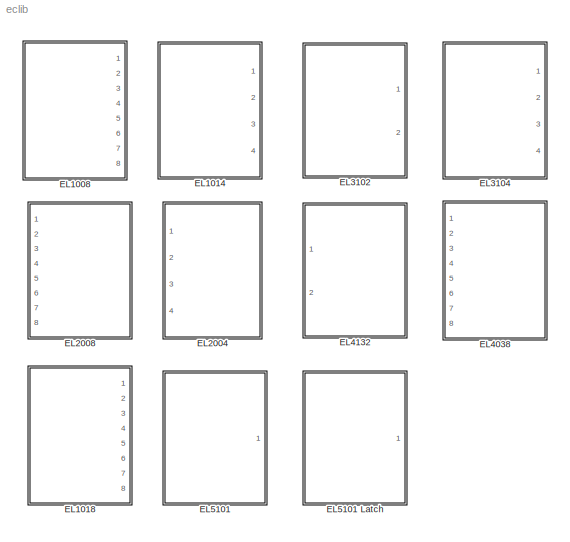
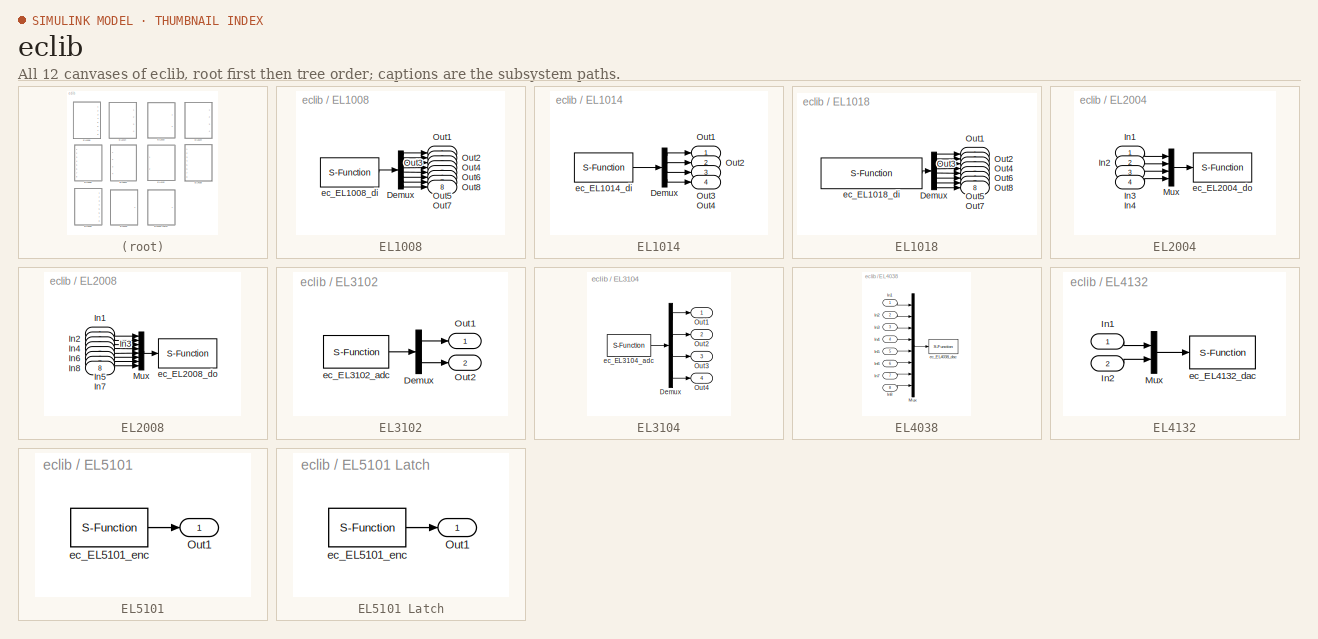
[diagram: thumbnail index - all 12 canvases of the model, root first then tree order]
MODEL eclib
KIND model
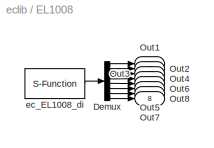
BLOCK [SubSystem] EL1008
  FunctionWithSeparateData = off
  MaskEnableString = on
  MaskHideContents = off
  MaskIconFrame = on
  MaskIconOpaque = on
  MaskIconRotate = none
  MaskIconUnits = autoscale
  MaskPromptString = Link id (>=0)
  MaskStyleString = edit
  MaskToolTipString = on
  MaskTunableValueString = on
  MaskType = EL1008
  MaskValueString = 1
  MaskVariables = link_id=@1;
  MaskVisibilityString = on
  MinAlgLoopOccurrences = off
  Ports = [0, 8]
  PropExecContextOutsideSubsystem = off
  RTWSystemCode = Auto
BLOCK [Demux] EL1008/Demux
  DisplayOption = bar
  Outputs = 8
  Ports = [1, 8]
BLOCK [Outport] EL1008/Out1
  IconDisplay = Port number
BLOCK [Outport] EL1008/Out2
  IconDisplay = Port number
  Port = 2
BLOCK [Outport] EL1008/Out3
  IconDisplay = Port number
  Port = 3
BLOCK [Outport] EL1008/Out4
  IconDisplay = Port number
  Port = 4
BLOCK [Outport] EL1008/Out5
  IconDisplay = Port number
  Port = 5
BLOCK [Outport] EL1008/Out6
  IconDisplay = Port number
  Port = 6
BLOCK [Outport] EL1008/Out7
  IconDisplay = Port number
  Port = 7
BLOCK [Outport] EL1008/Out8
  IconDisplay = Port number
  Port = 8
BLOCK [S-Function] EL1008/ec_EL1008_di
  EnableBusSupport = off
  FunctionName = ec_EL1008_di
  MaskEnableString = on
  MaskIconFrame = on
  MaskIconOpaque = on
  MaskIconRotate = none
  MaskIconUnits = autoscale
  MaskPromptString = digital in id (start from 1)
  MaskStyleString = edit
  MaskToolTipString = on
  MaskTunableValueString = on
  MaskValueString = link_id
  MaskVariables = link_id=@1;
  MaskVisibilityString = on
  Parameters = link_id
  Ports = [0, 1]
BLOCK [SubSystem] EL1014
  FunctionWithSeparateData = off
  MaskEnableString = on
  MaskHideContents = off
  MaskIconFrame = on
  MaskIconOpaque = on
  MaskIconRotate = none
  MaskIconUnits = autoscale
  MaskPromptString = Link id (>=0)
  MaskStyleString = edit
  MaskToolTipString = on
  MaskTunableValueString = on
  MaskType = EL1014
  MaskValueString = 1
  MaskVariables = link_id=&1;
  MaskVisibilityString = on
  MinAlgLoopOccurrences = off
  Ports = [0, 4]
  PropExecContextOutsideSubsystem = off
  RTWSystemCode = Auto
BLOCK [Demux] EL1014/Demux
  DisplayOption = bar
  Ports = [1, 4]
BLOCK [Outport] EL1014/Out1
  IconDisplay = Port number
BLOCK [Outport] EL1014/Out2
  IconDisplay = Port number
  Port = 2
BLOCK [Outport] EL1014/Out3
  IconDisplay = Port number
  Port = 3
BLOCK [Outport] EL1014/Out4
  IconDisplay = Port number
  Port = 4
BLOCK [S-Function] EL1014/ec_EL1014_di
  EnableBusSupport = off
  FunctionName = ec_EL1014_di
  MaskEnableString = on
  MaskIconFrame = on
  MaskIconOpaque = on
  MaskIconRotate = none
  MaskIconUnits = autoscale
  MaskPromptString = digital in id (start from 1)
  MaskStyleString = edit
  MaskToolTipString = on
  MaskTunableValueString = on
  MaskValueString = link_id
  MaskVariables = link_id=@1;
  MaskVisibilityString = on
  Parameters = link_id
  Ports = [0, 1]
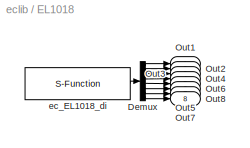
BLOCK [SubSystem] EL1018
  FunctionWithSeparateData = off
  MaskEnableString = on
  MaskHideContents = off
  MaskIconFrame = on
  MaskIconOpaque = on
  MaskIconRotate = none
  MaskIconUnits = autoscale
  MaskPromptString = Link id (>=0)
  MaskStyleString = edit
  MaskToolTipString = on
  MaskTunableValueString = on
  MaskType = EL1008
  MaskValueString = 1
  MaskVariables = link_id=@1;
  MaskVisibilityString = on
  MinAlgLoopOccurrences = off
  Ports = [0, 8]
  PropExecContextOutsideSubsystem = off
  RTWSystemCode = Auto
BLOCK [Demux] EL1018/Demux
  DisplayOption = bar
  Outputs = 8
  Ports = [1, 8]
BLOCK [Outport] EL1018/Out1
  IconDisplay = Port number
BLOCK [Outport] EL1018/Out2
  IconDisplay = Port number
  Port = 2
BLOCK [Outport] EL1018/Out3
  IconDisplay = Port number
  Port = 3
BLOCK [Outport] EL1018/Out4
  IconDisplay = Port number
  Port = 4
BLOCK [Outport] EL1018/Out5
  IconDisplay = Port number
  Port = 5
BLOCK [Outport] EL1018/Out6
  IconDisplay = Port number
  Port = 6
BLOCK [Outport] EL1018/Out7
  IconDisplay = Port number
  Port = 7
BLOCK [Outport] EL1018/Out8
  IconDisplay = Port number
  Port = 8
BLOCK [S-Function] EL1018/ec_EL1018_di
  EnableBusSupport = off
  FunctionName = ec_EL1018_di
  MaskEnableString = on
  MaskIconFrame = on
  MaskIconOpaque = on
  MaskIconRotate = none
  MaskIconUnits = autoscale
  MaskPromptString = digital in id (start from 1)
  MaskStyleString = edit
  MaskToolTipString = on
  MaskTunableValueString = on
  MaskValueString = link_id
  MaskVariables = link_id=@1;
  MaskVisibilityString = on
  Parameters = link_id
  Ports = [0, 1]
BLOCK [SubSystem] EL2004
  FunctionWithSeparateData = off
  MaskEnableString = on
  MaskHideContents = off
  MaskIconFrame = on
  MaskIconOpaque = on
  MaskIconRotate = none
  MaskIconUnits = autoscale
  MaskPromptString = Link id (>=0)
  MaskStyleString = edit
  MaskToolTipString = on
  MaskTunableValueString = on
  MaskType = EL2004
  MaskValueString = 1
  MaskVariables = link_id=@1;
  MaskVisibilityString = on
  MinAlgLoopOccurrences = off
  Ports = [4]
  PropExecContextOutsideSubsystem = off
  RTWSystemCode = Auto
BLOCK [Inport] EL2004/In1
  IconDisplay = Port number
BLOCK [Inport] EL2004/In2
  IconDisplay = Port number
  Port = 2
BLOCK [Inport] EL2004/In3
  IconDisplay = Port number
  Port = 3
BLOCK [Inport] EL2004/In4
  IconDisplay = Port number
  Port = 4
BLOCK [Mux] EL2004/Mux
  DisplayOption = bar
  Ports = [4, 1]
BLOCK [S-Function] EL2004/ec_EL2004_do
  EnableBusSupport = off
  FunctionName = ec_EL2004_do
  MaskEnableString = on
  MaskIconFrame = on
  MaskIconOpaque = on
  MaskIconRotate = none
  MaskIconUnits = autoscale
  MaskPromptString = digital out id (start from 1)
  MaskStyleString = edit
  MaskToolTipString = on
  MaskTunableValueString = on
  MaskValueString = link_id
  MaskVariables = link_id=@1;
  MaskVisibilityString = on
  Parameters = link_id
  Ports = [1]
BLOCK [SubSystem] EL2008
  FunctionWithSeparateData = off
  MaskEnableString = on
  MaskHideContents = off
  MaskIconFrame = on
  MaskIconOpaque = on
  MaskIconRotate = none
  MaskIconUnits = autoscale
  MaskPromptString = Link id (>=0)
  MaskStyleString = edit
  MaskToolTipString = on
  MaskTunableValueString = on
  MaskType = EL2008
  MaskValueString = 1
  MaskVariables = link_id=@1;
  MaskVisibilityString = on
  MinAlgLoopOccurrences = off
  Ports = [8]
  PropExecContextOutsideSubsystem = off
  RTWSystemCode = Auto
BLOCK [Inport] EL2008/In1
  IconDisplay = Port number
BLOCK [Inport] EL2008/In2
  IconDisplay = Port number
  Port = 2
BLOCK [Inport] EL2008/In3
  IconDisplay = Port number
  Port = 3
BLOCK [Inport] EL2008/In4
  IconDisplay = Port number
  Port = 4
BLOCK [Inport] EL2008/In5
  IconDisplay = Port number
  Port = 5
BLOCK [Inport] EL2008/In6
  IconDisplay = Port number
  Port = 6
BLOCK [Inport] EL2008/In7
  IconDisplay = Port number
  Port = 7
BLOCK [Inport] EL2008/In8
  IconDisplay = Port number
  Port = 8
BLOCK [Mux] EL2008/Mux
  DisplayOption = bar
  Inputs = 8
  Ports = [8, 1]
BLOCK [S-Function] EL2008/ec_EL2008_do
  EnableBusSupport = off
  FunctionName = ec_EL2008_do
  MaskEnableString = on
  MaskIconFrame = on
  MaskIconOpaque = on
  MaskIconRotate = none
  MaskIconUnits = autoscale
  MaskPromptString = digital out id (start from 1)
  MaskStyleString = edit
  MaskToolTipString = on
  MaskTunableValueString = on
  MaskValueString = link_id
  MaskVariables = link_id=@1;
  MaskVisibilityString = on
  Parameters = link_id
  Ports = [1]
BLOCK [SubSystem] EL3102
  FunctionWithSeparateData = off
  MaskEnableString = on
  MaskHideContents = off
  MaskIconFrame = on
  MaskIconOpaque = on
  MaskIconRotate = none
  MaskIconUnits = autoscale
  MaskPromptString = Link id (>=0)
  MaskStyleString = edit
  MaskToolTipString = on
  MaskTunableValueString = on
  MaskType = EL3102
  MaskValueString = 1
  MaskVariables = link_id=@1;
  MaskVisibilityString = on
  MinAlgLoopOccurrences = off
  Ports = [0, 2]
  PropExecContextOutsideSubsystem = off
  RTWSystemCode = Auto
BLOCK [Demux] EL3102/Demux
  DisplayOption = bar
  Outputs = 2
  Ports = [1, 2]
BLOCK [Outport] EL3102/Out1
  IconDisplay = Port number
BLOCK [Outport] EL3102/Out2
  IconDisplay = Port number
  Port = 2
BLOCK [S-Function] EL3102/ec_EL3102_adc
  EnableBusSupport = off
  FunctionName = ec_EL3102_adc
  MaskEnableString = on
  MaskIconFrame = on
  MaskIconOpaque = on
  MaskIconRotate = none
  MaskIconUnits = autoscale
  MaskPromptString = analog in id (start from 1)
  MaskStyleString = edit
  MaskToolTipString = on
  MaskTunableValueString = on
  MaskValueString = link_id
  MaskVariables = link_id=@1;
  MaskVisibilityString = on
  Parameters = link_id
  Ports = [0, 1]
BLOCK [SubSystem] EL3104
  FunctionWithSeparateData = off
  MaskEnableString = on
  MaskHideContents = off
  MaskIconFrame = on
  MaskIconOpaque = on
  MaskIconRotate = none
  MaskIconUnits = autoscale
  MaskPromptString = Link id (>=0)
  MaskStyleString = edit
  MaskToolTipString = on
  MaskTunableValueString = on
  MaskType = EL3102
  MaskValueString = 1
  MaskVariables = link_id=@1;
  MaskVisibilityString = on
  MinAlgLoopOccurrences = off
  Ports = [0, 4]
  PropExecContextOutsideSubsystem = off
  RTWSystemCode = Auto
BLOCK [Demux] EL3104/Demux
  DisplayOption = bar
  Ports = [1, 4]
BLOCK [Outport] EL3104/Out1
  IconDisplay = Port number
BLOCK [Outport] EL3104/Out2
  IconDisplay = Port number
  Port = 2
BLOCK [Outport] EL3104/Out3
  IconDisplay = Port number
  Port = 3
BLOCK [Outport] EL3104/Out4
  IconDisplay = Port number
  Port = 4
BLOCK [S-Function] EL3104/ec_EL3104_adc
  EnableBusSupport = off
  FunctionName = ec_EL3104_adc
  MaskEnableString = on
  MaskIconFrame = on
  MaskIconOpaque = on
  MaskIconRotate = none
  MaskIconUnits = autoscale
  MaskPromptString = analog in id (start from 1)
  MaskStyleString = edit
  MaskToolTipString = on
  MaskTunableValueString = on
  MaskValueString = link_id
  MaskVariables = link_id=@1;
  MaskVisibilityString = on
  Parameters = link_id
  Ports = [0, 1]
BLOCK [SubSystem] EL4038
  FunctionWithSeparateData = off
  MaskEnableString = on
  MaskHideContents = off
  MaskIconFrame = on
  MaskIconOpaque = on
  MaskIconRotate = none
  MaskIconUnits = autoscale
  MaskPromptString = Link id (>=0)
  MaskStyleString = edit
  MaskToolTipString = on
  MaskTunableValueString = on
  MaskType = EL4038
  MaskValueString = 1
  MaskVariables = link_id=@1;
  MaskVisibilityString = on
  MinAlgLoopOccurrences = off
  Ports = [8]
  PropExecContextOutsideSubsystem = off
  RTWSystemCode = Auto
BLOCK [Inport] EL4038/In1
  IconDisplay = Port number
BLOCK [Inport] EL4038/In2
  IconDisplay = Port number
  Port = 2
BLOCK [Inport] EL4038/In3
  IconDisplay = Port number
  Port = 3
BLOCK [Inport] EL4038/In4
  IconDisplay = Port number
  Port = 4
BLOCK [Inport] EL4038/In5
  IconDisplay = Port number
  Port = 5
BLOCK [Inport] EL4038/In6
  IconDisplay = Port number
  Port = 6
BLOCK [Inport] EL4038/In7
  IconDisplay = Port number
  Port = 7
BLOCK [Inport] EL4038/In8
  IconDisplay = Port number
  Port = 8
BLOCK [Mux] EL4038/Mux
  DisplayOption = bar
  Inputs = 8
  Ports = [8, 1]
BLOCK [S-Function] EL4038/ec_EL4038_dac
  EnableBusSupport = off
  FunctionName = ec_EL4038_dac
  MaskEnableString = on
  MaskIconFrame = on
  MaskIconOpaque = on
  MaskIconRotate = none
  MaskIconUnits = autoscale
  MaskPromptString = analog out id (start from 1)
  MaskStyleString = edit
  MaskToolTipString = on
  MaskTunableValueString = on
  MaskValueString = link_id
  MaskVariables = link_id=@1;
  MaskVisibilityString = on
  Parameters = link_id
  Ports = [1]
BLOCK [SubSystem] EL4132
  FunctionWithSeparateData = off
  MaskEnableString = on
  MaskHideContents = off
  MaskIconFrame = on
  MaskIconOpaque = on
  MaskIconRotate = none
  MaskIconUnits = autoscale
  MaskPromptString = Link id (>=0)
  MaskStyleString = edit
  MaskToolTipString = on
  MaskTunableValueString = on
  MaskType = EL4132
  MaskValueString = 1
  MaskVariables = link_id=@1;
  MaskVisibilityString = on
  MinAlgLoopOccurrences = off
  Ports = [2]
  PropExecContextOutsideSubsystem = off
  RTWSystemCode = Auto
BLOCK [Inport] EL4132/In1
  IconDisplay = Port number
BLOCK [Inport] EL4132/In2
  IconDisplay = Port number
  Port = 2
BLOCK [Mux] EL4132/Mux
  DisplayOption = bar
  Inputs = 2
  Ports = [2, 1]
BLOCK [S-Function] EL4132/ec_EL4132_dac
  EnableBusSupport = off
  FunctionName = ec_EL4132_dac
  MaskEnableString = on
  MaskIconFrame = on
  MaskIconOpaque = on
  MaskIconRotate = none
  MaskIconUnits = autoscale
  MaskPromptString = analog out id (start from 1)
  MaskStyleString = edit
  MaskToolTipString = on
  MaskTunableValueString = on
  MaskValueString = link_id
  MaskVariables = link_id=@1;
  MaskVisibilityString = on
  Parameters = link_id
  Ports = [1]
BLOCK [SubSystem] EL5101
  FunctionWithSeparateData = off
  MaskEnableString = on
  MaskHideContents = off
  MaskIconFrame = on
  MaskIconOpaque = on
  MaskIconRotate = none
  MaskIconUnits = autoscale
  MaskPromptString = Link id (>=0)
  MaskStyleString = edit
  MaskToolTipString = on
  MaskTunableValueString = on
  MaskType = EL5101
  MaskValueString = 1
  MaskVariables = link_id=@1;
  MaskVisibilityString = on
  MinAlgLoopOccurrences = off
  Ports = [0, 1]
  PropExecContextOutsideSubsystem = off
  RTWSystemCode = Auto
BLOCK [SubSystem] EL5101 Latch
  FunctionWithSeparateData = off
  MaskEnableString = on
  MaskHideContents = off
  MaskIconFrame = on
  MaskIconOpaque = on
  MaskIconRotate = none
  MaskIconUnits = autoscale
  MaskPromptString = Link id (>=0)
  MaskStyleString = edit
  MaskToolTipString = on
  MaskTunableValueString = on
  MaskType = EL5101
  MaskValueString = 0
  MaskVariables = link_id=@1;
  MaskVisibilityString = on
  MinAlgLoopOccurrences = off
  Ports = [0, 1]
  PropExecContextOutsideSubsystem = off
  RTWSystemCode = Auto
BLOCK [Outport] EL5101 Latch/Out1
  IconDisplay = Port number
BLOCK [S-Function] EL5101 Latch/ec_EL5101_enc
  EnableBusSupport = off
  FunctionName = ec_EL5101_latch
  MaskEnableString = on
  MaskIconFrame = on
  MaskIconOpaque = on
  MaskIconRotate = none
  MaskIconUnits = autoscale
  MaskPromptString = encoder in id (start from 1)
  MaskStyleString = edit
  MaskToolTipString = on
  MaskTunableValueString = on
  MaskValueString = link_id
  MaskVariables = link_id=@1;
  MaskVisibilityString = on
  Parameters = link_id
  Ports = [0, 1]
BLOCK [Outport] EL5101/Out1
  IconDisplay = Port number
BLOCK [S-Function] EL5101/ec_EL5101_enc
  EnableBusSupport = off
  FunctionName = ec_EL5101_enc
  MaskEnableString = on
  MaskIconFrame = on
  MaskIconOpaque = on
  MaskIconRotate = none
  MaskIconUnits = autoscale
  MaskPromptString = encoder in id (start from 1)
  MaskStyleString = edit
  MaskToolTipString = on
  MaskTunableValueString = on
  MaskValueString = link_id
  MaskVariables = link_id=@1;
  MaskVisibilityString = on
  Parameters = link_id
  Ports = [0, 1]
LINE EL1008/Demux:1 -> EL1008/Out1:1
LINE EL1008/Demux:2 -> EL1008/Out2:1
LINE EL1008/Demux:3 -> EL1008/Out3:1
LINE EL1008/Demux:4 -> EL1008/Out4:1
LINE EL1008/Demux:5 -> EL1008/Out5:1
LINE EL1008/Demux:6 -> EL1008/Out6:1
LINE EL1008/Demux:7 -> EL1008/Out7:1
LINE EL1008/Demux:8 -> EL1008/Out8:1
LINE EL1008/ec_EL1008_di:1 -> EL1008/Demux:1
LINE EL1014/Demux:1 -> EL1014/Out1:1
LINE EL1014/Demux:2 -> EL1014/Out2:1
LINE EL1014/Demux:3 -> EL1014/Out3:1
LINE EL1014/Demux:4 -> EL1014/Out4:1
LINE EL1014/ec_EL1014_di:1 -> EL1014/Demux:1
LINE EL1018/Demux:1 -> EL1018/Out1:1
LINE EL1018/Demux:2 -> EL1018/Out2:1
LINE EL1018/Demux:3 -> EL1018/Out3:1
LINE EL1018/Demux:4 -> EL1018/Out4:1
LINE EL1018/Demux:5 -> EL1018/Out5:1
LINE EL1018/Demux:6 -> EL1018/Out6:1
LINE EL1018/Demux:7 -> EL1018/Out7:1
LINE EL1018/Demux:8 -> EL1018/Out8:1
LINE EL1018/ec_EL1018_di:1 -> EL1018/Demux:1
LINE EL2004/In1:1 -> EL2004/Mux:1
LINE EL2004/In2:1 -> EL2004/Mux:2
LINE EL2004/In3:1 -> EL2004/Mux:3
LINE EL2004/In4:1 -> EL2004/Mux:4
LINE EL2004/Mux:1 -> EL2004/ec_EL2004_do:1
LINE EL2008/In1:1 -> EL2008/Mux:1
LINE EL2008/In2:1 -> EL2008/Mux:2
LINE EL2008/In3:1 -> EL2008/Mux:3
LINE EL2008/In4:1 -> EL2008/Mux:4
LINE EL2008/In5:1 -> EL2008/Mux:5
LINE EL2008/In6:1 -> EL2008/Mux:6
LINE EL2008/In7:1 -> EL2008/Mux:7
LINE EL2008/In8:1 -> EL2008/Mux:8
LINE EL2008/Mux:1 -> EL2008/ec_EL2008_do:1
LINE EL3102/Demux:1 -> EL3102/Out1:1
LINE EL3102/Demux:2 -> EL3102/Out2:1
LINE EL3102/ec_EL3102_adc:1 -> EL3102/Demux:1
LINE EL3104/Demux:1 -> EL3104/Out1:1
LINE EL3104/Demux:2 -> EL3104/Out2:1
LINE EL3104/Demux:3 -> EL3104/Out3:1
LINE EL3104/Demux:4 -> EL3104/Out4:1
LINE EL3104/ec_EL3104_adc:1 -> EL3104/Demux:1
LINE EL4038/In1:1 -> EL4038/Mux:1
LINE EL4038/In2:1 -> EL4038/Mux:2
LINE EL4038/In3:1 -> EL4038/Mux:3
LINE EL4038/In4:1 -> EL4038/Mux:4
LINE EL4038/In5:1 -> EL4038/Mux:5
LINE EL4038/In6:1 -> EL4038/Mux:6
LINE EL4038/In7:1 -> EL4038/Mux:7
LINE EL4038/In8:1 -> EL4038/Mux:8
LINE EL4038/Mux:1 -> EL4038/ec_EL4038_dac:1
LINE EL4132/In1:1 -> EL4132/Mux:1
LINE EL4132/In2:1 -> EL4132/Mux:2
LINE EL4132/Mux:1 -> EL4132/ec_EL4132_dac:1
LINE EL5101 Latch/ec_EL5101_enc:1 -> EL5101 Latch/Out1:1
LINE EL5101/ec_EL5101_enc:1 -> EL5101/Out1:1
